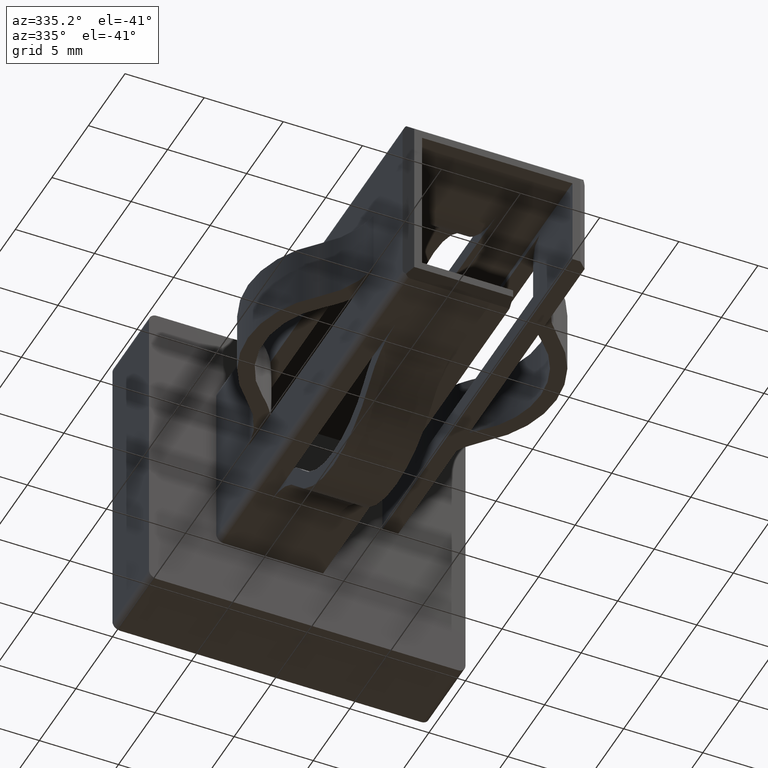
[diagram: clean part render]
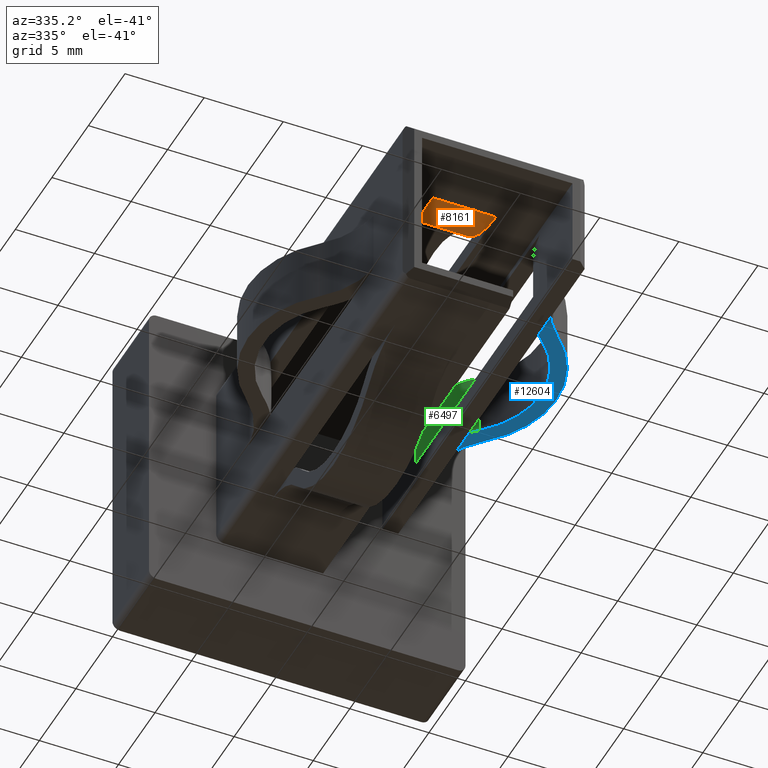
[diagram: same view with three faces highlighted in distinct colors, each labeled with its STEP entity id]
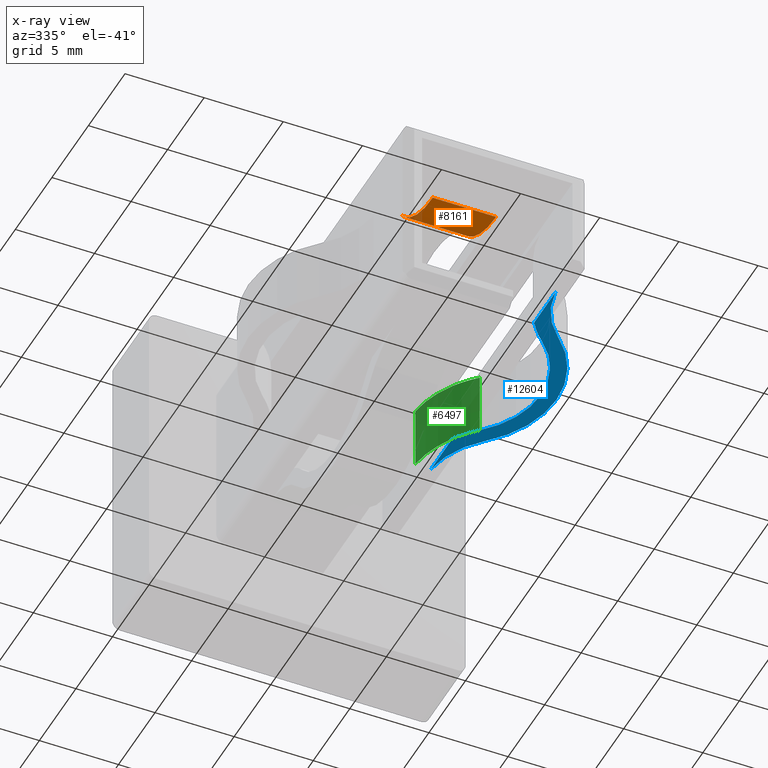
[diagram: x-ray of the same camera — body ghosted, the three highlighted faces saturated]
A machine part, auxiliary view with three faces highlighted in distinct colors.
The next image is the same camera in x-ray (body ghosted, the three faces saturated) — at least one of them is partly hidden behind the body in this view.
Their STEP definitions:

[orange] entity #8161 — the highlighted cylindrical surface (partial cylindrical patch) has radius 5.5423 mm, axis along (1, -0, -0).
#254 = EDGE_CURVE ( 'NONE', #2799, #10098, #3584, .T. ) ;
#347 = AXIS2_PLACEMENT_3D ( 'NONE', #12195, #11063, #12140 ) ;
#589 = CARTESIAN_POINT ( 'NONE',  ( -1.999999999999999100, -21.50000000000000000, 4.749999999999996400 ) ) ;
#842 = DIRECTION ( 'NONE',  ( -1.000000000000000000, -0.0000000000000000000, 1.927470528863118800E-016 ) ) ;
#1039 = VERTEX_POINT ( 'NONE', #2925 ) ;
#1273 = DIRECTION ( 'NONE',  ( -1.564990960916182700E-016, 0.0000000000000000000, -1.000000000000000000 ) ) ;
#1335 = CIRCLE ( 'NONE', #6800, 5.542279538027680800 ) ;
#1551 = CARTESIAN_POINT ( 'NONE',  ( -1.999999999999999100, -21.50000000000000000, 4.749999999999996400 ) ) ;
#1723 = CARTESIAN_POINT ( 'NONE',  ( 2.000000000000001300, -17.22946183789119700, 6.759665071773744300 ) ) ;
#2064 = VERTEX_POINT ( 'NONE', #1551 ) ;
#2303 = AXIS2_PLACEMENT_3D ( 'NONE', #11037, #8836, #7823 ) ;
#2564 = DIRECTION ( 'NONE',  ( -1.000000000000000000, -3.697785493223492800E-032, 1.927470528863119000E-016 ) ) ;
#2764 = AXIS2_PLACEMENT_3D ( 'NONE', #7645, #8650, #1273 ) ;
#2799 = VERTEX_POINT ( 'NONE', #13659 ) ;
#2925 = CARTESIAN_POINT ( 'NONE',  ( 2.000000000000000900, -21.50000000000000000, 4.749999999999995600 ) ) ;
#3584 = CIRCLE ( 'NONE', #2303, 5.542279538027680800 ) ;
#3647 = VECTOR ( 'NONE', #8036, 1000.000000000000000 ) ;
#3657 = CARTESIAN_POINT ( 'NONE',  ( -1.999999999999998700, -18.32438067502630500, 5.749999999999998200 ) ) ;
#3850 = AXIS2_PLACEMENT_3D ( 'NONE', #6771, #2564, #7886 ) ;
#4949 = EDGE_CURVE ( 'NONE', #11044, #2064, #13660, .T. ) ;
#5066 = ORIENTED_EDGE ( 'NONE', *, *, #7344, .F. ) ;
#5660 = CARTESIAN_POINT ( 'NONE',  ( 2.000000000000001300, -18.32438067502630500, 5.749999999999998200 ) ) ;
#5707 = ORIENTED_EDGE ( 'NONE', *, *, #9336, .F. ) ;
#5747 = CARTESIAN_POINT ( 'NONE',  ( -1.999999999999998700, -17.22946183789119700, 6.759665071773745200 ) ) ;
#6295 = ORIENTED_EDGE ( 'NONE', *, *, #12082, .F. ) ;
#6407 = LINE ( 'NONE', #1723, #10303 ) ;
#6771 = CARTESIAN_POINT ( 'NONE',  ( 2.000000000000002200, -21.50000015412883400, 10.29227953802767300 ) ) ;
#6800 = AXIS2_PLACEMENT_3D ( 'NONE', #12759, #7331, #7379 ) ;
#7331 = DIRECTION ( 'NONE',  ( -1.000000000000000000, -3.697785493223492800E-032, 1.927470528863119000E-016 ) ) ;
#7344 = EDGE_CURVE ( 'NONE', #2064, #1039, #10052, .T. ) ;
#7379 = DIRECTION ( 'NONE',  ( -1.564990960916182500E-016, 5.633967459298256100E-015, -1.000000000000000000 ) ) ;
#7645 = CARTESIAN_POINT ( 'NONE',  ( -1.999999999999997800, -21.50000015412883400, 10.29227953802767300 ) ) ;
#7823 = DIRECTION ( 'NONE',  ( -1.564990960916182500E-016, 2.503985537465891900E-015, -1.000000000000000000 ) ) ;
#7886 = DIRECTION ( 'NONE',  ( -1.564990960916182700E-016, -6.259963843664730800E-016, -1.000000000000000000 ) ) ;
#8036 = DIRECTION ( 'NONE',  ( 1.000000000000000000, -0.0000000000000000000, -1.927470528863118800E-016 ) ) ;
#8161 = ADVANCED_FACE ( 'NONE', ( #13776 ), #8834, .T. ) ;
#8650 = DIRECTION ( 'NONE',  ( 1.000000000000000000, -0.0000000000000000000, -1.927470528863118800E-016 ) ) ;
#8834 = CYLINDRICAL_SURFACE ( 'NONE', #2764, 5.542279538027679900 ) ;
#8836 = DIRECTION ( 'NONE',  ( -1.000000000000000000, -3.697785493223492800E-032, 1.927470528863119000E-016 ) ) ;
#8847 = CIRCLE ( 'NONE', #3850, 5.542279538027679900 ) ;
#9336 = EDGE_CURVE ( 'NONE', #13274, #11044, #1335, .T. ) ;
#9762 = EDGE_CURVE ( 'NONE', #10098, #1039, #8847, .T. ) ;
#10052 = LINE ( 'NONE', #589, #3647 ) ;
#10098 = VERTEX_POINT ( 'NONE', #5660 ) ;
#10303 = VECTOR ( 'NONE', #842, 1000.000000000000000 ) ;
#10793 = EDGE_LOOP ( 'NONE', ( #12399, #5066, #13184, #5707, #6295, #10859 ) ) ;
#10859 = ORIENTED_EDGE ( 'NONE', *, *, #254, .T. ) ;
#11037 = CARTESIAN_POINT ( 'NONE',  ( 2.000000000000002200, -21.50000015412883400, 10.29227953802767300 ) ) ;
#11044 = VERTEX_POINT ( 'NONE', #3657 ) ;
#11063 = DIRECTION ( 'NONE',  ( -1.000000000000000000, -3.697785493223492800E-032, 1.927470528863119000E-016 ) ) ;
#12082 = EDGE_CURVE ( 'NONE', #2799, #13274, #6407, .T. ) ;
#12140 = DIRECTION ( 'NONE',  ( -1.564990960916182700E-016, -6.259963843664730800E-016, -1.000000000000000000 ) ) ;
#12195 = CARTESIAN_POINT ( 'NONE',  ( -1.999999999999997800, -21.50000015412883400, 10.29227953802767300 ) ) ;
#12399 = ORIENTED_EDGE ( 'NONE', *, *, #9762, .T. ) ;
#12759 = CARTESIAN_POINT ( 'NONE',  ( -1.999999999999997800, -21.50000015412883400, 10.29227953802767300 ) ) ;
#13184 = ORIENTED_EDGE ( 'NONE', *, *, #4949, .F. ) ;
#13274 = VERTEX_POINT ( 'NONE', #5747 ) ;
#13659 = CARTESIAN_POINT ( 'NONE',  ( 2.000000000000001300, -17.22946183789119700, 6.759665071773744300 ) ) ;
#13660 = CIRCLE ( 'NONE', #347, 5.542279538027679900 ) ;
#13776 = FACE_OUTER_BOUND ( 'NONE', #10793, .T. ) ;

[blue] entity #12604 — the highlighted planar face has unit normal (0, 0, -1).
#163 = CARTESIAN_POINT ( 'NONE',  ( 0.0000000000000000000, 0.0000000000000000000, 0.3750000000000012200 ) ) ;
#198 = ORIENTED_EDGE ( 'NONE', *, *, #4746, .F. ) ;
#475 = AXIS2_PLACEMENT_3D ( 'NONE', #163, #5286, #9774 ) ;
#591 = CIRCLE ( 'NONE', #751, 6.570636481488699100 ) ;
#686 = CARTESIAN_POINT ( 'NONE',  ( 6.869671997424529900, -17.26419206682738100, 0.3750000000000012200 ) ) ;
#751 = AXIS2_PLACEMENT_3D ( 'NONE', #11535, #5091, #11581 ) ;
#797 = CARTESIAN_POINT ( 'NONE',  ( 7.538946040031041700, -7.999999999999117200, 0.3750000000000012200 ) ) ;
#817 = DIRECTION ( 'NONE',  ( -1.000000000000000000, 0.0000000000000000000, 0.0000000000000000000 ) ) ;
#967 = DIRECTION ( 'NONE',  ( -1.000000000000000000, 1.805660915888430200E-015, 0.0000000000000000000 ) ) ;
#1646 = VERTEX_POINT ( 'NONE', #686 ) ;
#1729 = FACE_OUTER_BOUND ( 'NONE', #13146, .T. ) ;
#1795 = CIRCLE ( 'NONE', #3226, 6.758939436817367000 ) ;
#2125 = CARTESIAN_POINT ( 'NONE',  ( 5.749999999999998200, -21.49999999995739200, 0.3750000000000012200 ) ) ;
#2254 = PLANE ( 'NONE',  #475 ) ;
#2282 = EDGE_CURVE ( 'NONE', #1646, #13076, #10134, .T. ) ;
#2753 = DIRECTION ( 'NONE',  ( -0.0000000000000000000, -0.0000000000000000000, 1.000000000000000000 ) ) ;
#2902 = DIRECTION ( 'NONE',  ( -0.0000000000000000000, -0.0000000000000000000, 1.000000000000000000 ) ) ;
#2929 = VERTEX_POINT ( 'NONE', #10435 ) ;
#3226 = AXIS2_PLACEMENT_3D ( 'NONE', #9341, #2902, #10440 ) ;
#3247 = VERTEX_POINT ( 'NONE', #5788 ) ;
#3318 = AXIS2_PLACEMENT_3D ( 'NONE', #4860, #11441, #12451 ) ;
#3486 = AXIS2_PLACEMENT_3D ( 'NONE', #3837, #5941, #8088 ) ;
#3552 = EDGE_CURVE ( 'NONE', #12341, #3247, #12499, .T. ) ;
#3599 = CARTESIAN_POINT ( 'NONE',  ( 5.750000000000000000, -4.500000000032007300, 0.3750000000000012200 ) ) ;
#3837 = CARTESIAN_POINT ( 'NONE',  ( 11.29085412328628700, -22.12489287862712600, 0.3750000000000012200 ) ) ;
#3896 = CARTESIAN_POINT ( 'NONE',  ( 5.749999999999998200, -26.00000000000000000, 0.3750000000000012200 ) ) ;
#3933 = ORIENTED_EDGE ( 'NONE', *, *, #11114, .F. ) ;
#4234 = DIRECTION ( 'NONE',  ( -0.0000000000000000000, -0.0000000000000000000, 1.000000000000000000 ) ) ;
#4314 = ORIENTED_EDGE ( 'NONE', *, *, #10712, .F. ) ;
#4540 = CIRCLE ( 'NONE', #9185, 5.575980229998810600 ) ;
#4746 = EDGE_CURVE ( 'NONE', #5052, #5506, #6531, .T. ) ;
#4860 = CARTESIAN_POINT ( 'NONE',  ( 11.29085412328628700, -22.12489287862712600, 0.3750000000000012200 ) ) ;
#5052 = VERTEX_POINT ( 'NONE', #3599 ) ;
#5091 = DIRECTION ( 'NONE',  ( -0.0000000000000000000, -0.0000000000000000000, 1.000000000000000000 ) ) ;
#5102 = DIRECTION ( 'NONE',  ( 0.0000000000000000000, -1.000000000000000000, 0.0000000000000000000 ) ) ;
#5185 = VECTOR ( 'NONE', #10782, 1000.000000000000000 ) ;
#5242 = ORIENTED_EDGE ( 'NONE', *, *, #13494, .T. ) ;
#5247 = CARTESIAN_POINT ( 'NONE',  ( 5.749999999999998200, -26.00000000000000000, 0.3750000000000012200 ) ) ;
#5280 = ORIENTED_EDGE ( 'NONE', *, *, #10790, .F. ) ;
#5286 = DIRECTION ( 'NONE',  ( 0.0000000000000000000, 0.0000000000000000000, -1.000000000000000000 ) ) ;
#5472 = DIRECTION ( 'NONE',  ( -1.000000000000000000, 0.0000000000000000000, 0.0000000000000000000 ) ) ;
#5506 = VERTEX_POINT ( 'NONE', #6465 ) ;
#5614 = VERTEX_POINT ( 'NONE', #2125 ) ;
#5788 = CARTESIAN_POINT ( 'NONE',  ( 6.869671997424537900, -8.735807933172621300, 0.3750000000000012200 ) ) ;
#5941 = DIRECTION ( 'NONE',  ( -0.0000000000000000000, -0.0000000000000000000, 1.000000000000000000 ) ) ;
#6465 = CARTESIAN_POINT ( 'NONE',  ( 5.749999999999998200, -7.406707234116596300, 0.3750000000000012200 ) ) ;
#6531 = LINE ( 'NONE', #5247, #5185 ) ;
#7145 = CARTESIAN_POINT ( 'NONE',  ( 11.29085412328629100, -3.875107121372872500, 0.3750000000000012200 ) ) ;
#8001 = CARTESIAN_POINT ( 'NONE',  ( 8.755343748506501100, -12.99999999999999800, 0.3750000000000012200 ) ) ;
#8088 = DIRECTION ( 'NONE',  ( -1.000000000000000000, 1.003243632071750600E-014, 0.0000000000000000000 ) ) ;
#8560 = CARTESIAN_POINT ( 'NONE',  ( 2.991060563177831100, -12.99999999999999800, 0.3750000000000012200 ) ) ;
#8669 = EDGE_CURVE ( 'NONE', #10388, #9664, #1795, .T. ) ;
#9185 = AXIS2_PLACEMENT_3D ( 'NONE', #7145, #2753, #817 ) ;
#9341 = CARTESIAN_POINT ( 'NONE',  ( 2.991060563177831100, -12.99999999999999800, 0.3750000000000012200 ) ) ;
#9473 = ORIENTED_EDGE ( 'NONE', *, *, #2282, .F. ) ;
#9561 = ORIENTED_EDGE ( 'NONE', *, *, #3552, .T. ) ;
#9664 = VERTEX_POINT ( 'NONE', #797 ) ;
#9774 = DIRECTION ( 'NONE',  ( -1.000000000000000000, 0.0000000000000000000, -0.0000000000000000000 ) ) ;
#10006 = CIRCLE ( 'NONE', #13086, 6.758939436817367000 ) ;
#10134 = CIRCLE ( 'NONE', #3486, 6.570636481488695500 ) ;
#10386 = CARTESIAN_POINT ( 'NONE',  ( 9.749999999995198500, -12.99999999999999800, 0.3750000000000012200 ) ) ;
#10388 = VERTEX_POINT ( 'NONE', #10386 ) ;
#10435 = CARTESIAN_POINT ( 'NONE',  ( 7.538946040030235300, -18.00000000000000400, 0.3750000000000012200 ) ) ;
#10440 = DIRECTION ( 'NONE',  ( -1.000000000000000000, 0.0000000000000000000, 0.0000000000000000000 ) ) ;
#10712 = EDGE_CURVE ( 'NONE', #13076, #5614, #13916, .T. ) ;
#10731 = ORIENTED_EDGE ( 'NONE', *, *, #12407, .T. ) ;
#10782 = DIRECTION ( 'NONE',  ( 0.0000000000000000000, -1.000000000000000000, 0.0000000000000000000 ) ) ;
#10790 = EDGE_CURVE ( 'NONE', #2929, #10388, #10006, .T. ) ;
#10881 = DIRECTION ( 'NONE',  ( -0.0000000000000000000, -0.0000000000000000000, 1.000000000000000000 ) ) ;
#11091 = CARTESIAN_POINT ( 'NONE',  ( 5.749999999999998200, -18.59329276588339800, 0.3750000000000012200 ) ) ;
#11114 = EDGE_CURVE ( 'NONE', #5506, #3247, #591, .T. ) ;
#11441 = DIRECTION ( 'NONE',  ( -0.0000000000000000000, -0.0000000000000000000, 1.000000000000000000 ) ) ;
#11459 = AXIS2_PLACEMENT_3D ( 'NONE', #8560, #4234, #967 ) ;
#11478 = CIRCLE ( 'NONE', #11459, 5.764283185328669600 ) ;
#11535 = CARTESIAN_POINT ( 'NONE',  ( 11.29085412328629100, -3.875107121372872500, 0.3750000000000012200 ) ) ;
#11537 = VECTOR ( 'NONE', #5102, 1000.000000000000000 ) ;
#11581 = DIRECTION ( 'NONE',  ( -1.000000000000000000, 0.0000000000000000000, 0.0000000000000000000 ) ) ;
#12341 = VERTEX_POINT ( 'NONE', #8001 ) ;
#12407 = EDGE_CURVE ( 'NONE', #2929, #5614, #13877, .T. ) ;
#12422 = DIRECTION ( 'NONE',  ( -1.000000000000000000, 0.0000000000000000000, 0.0000000000000000000 ) ) ;
#12451 = DIRECTION ( 'NONE',  ( -1.000000000000000000, 0.0000000000000000000, 0.0000000000000000000 ) ) ;
#12471 = DIRECTION ( 'NONE',  ( -0.0000000000000000000, -0.0000000000000000000, 1.000000000000000000 ) ) ;
#12499 = CIRCLE ( 'NONE', #12509, 5.764283185328669600 ) ;
#12509 = AXIS2_PLACEMENT_3D ( 'NONE', #13428, #12471, #12422 ) ;
#12604 = ADVANCED_FACE ( 'NONE', ( #1729 ), #2254, .T. ) ;
#12721 = ORIENTED_EDGE ( 'NONE', *, *, #8669, .F. ) ;
#12737 = CARTESIAN_POINT ( 'NONE',  ( 2.991060563177831100, -12.99999999999999800, 0.3750000000000012200 ) ) ;
#12813 = EDGE_CURVE ( 'NONE', #5052, #9664, #4540, .T. ) ;
#12911 = ORIENTED_EDGE ( 'NONE', *, *, #12813, .T. ) ;
#13076 = VERTEX_POINT ( 'NONE', #11091 ) ;
#13086 = AXIS2_PLACEMENT_3D ( 'NONE', #12737, #10881, #5472 ) ;
#13146 = EDGE_LOOP ( 'NONE', ( #198, #12911, #12721, #5280, #10731, #4314, #9473, #5242, #9561, #3933 ) ) ;
#13428 = CARTESIAN_POINT ( 'NONE',  ( 2.991060563177831100, -12.99999999999999800, 0.3750000000000012200 ) ) ;
#13494 = EDGE_CURVE ( 'NONE', #1646, #12341, #11478, .T. ) ;
#13877 = CIRCLE ( 'NONE', #3318, 5.575980229999999000 ) ;
#13916 = LINE ( 'NONE', #3896, #11537 ) ;

[green] entity #6497 — the highlighted cylindrical surface (partial cylindrical patch) has radius 6.5706 mm, axis along (-0, -0, -1).
#37 = EDGE_CURVE ( 'NONE', #8540, #5506, #957, .T. ) ;
#299 = VECTOR ( 'NONE', #12448, 1000.000000000000000 ) ;
#591 = CIRCLE ( 'NONE', #751, 6.570636481488699100 ) ;
#751 = AXIS2_PLACEMENT_3D ( 'NONE', #11535, #5091, #11581 ) ;
#879 = CARTESIAN_POINT ( 'NONE',  ( 6.869671997424537900, -8.735807933172621300, 4.375000000000000900 ) ) ;
#957 = CIRCLE ( 'NONE', #5165, 6.570636481488699100 ) ;
#1628 = CARTESIAN_POINT ( 'NONE',  ( 4.749999999999999100, -4.500000000000007100, 0.3750000000000012200 ) ) ;
#1755 = CARTESIAN_POINT ( 'NONE',  ( 6.869671997424537900, -8.735807933172621300, 0.3750000000000012200 ) ) ;
#3134 = LINE ( 'NONE', #1755, #299 ) ;
#3247 = VERTEX_POINT ( 'NONE', #5788 ) ;
#3257 = DIRECTION ( 'NONE',  ( -0.0000000000000000000, -0.0000000000000000000, 1.000000000000000000 ) ) ;
#4321 = VECTOR ( 'NONE', #9224, 1000.000000000000000 ) ;
#4422 = ORIENTED_EDGE ( 'NONE', *, *, #7988, .F. ) ;
#4885 = CARTESIAN_POINT ( 'NONE',  ( 11.29085412328629100, -3.875107121372872500, 0.3750000000000012200 ) ) ;
#4893 = DIRECTION ( 'NONE',  ( -0.0000000000000000000, -0.0000000000000000000, 1.000000000000000000 ) ) ;
#5082 = DIRECTION ( 'NONE',  ( -1.000000000000000000, 0.0000000000000000000, 0.0000000000000000000 ) ) ;
#5091 = DIRECTION ( 'NONE',  ( -0.0000000000000000000, -0.0000000000000000000, 1.000000000000000000 ) ) ;
#5165 = AXIS2_PLACEMENT_3D ( 'NONE', #4885, #12474, #7425 ) ;
#5287 = DIRECTION ( 'NONE',  ( -0.0000000000000000000, -0.0000000000000000000, -1.000000000000000000 ) ) ;
#5506 = VERTEX_POINT ( 'NONE', #6465 ) ;
#5788 = CARTESIAN_POINT ( 'NONE',  ( 6.869671997424537900, -8.735807933172621300, 0.3750000000000012200 ) ) ;
#6465 = CARTESIAN_POINT ( 'NONE',  ( 5.749999999999998200, -7.406707234116596300, 0.3750000000000012200 ) ) ;
#6497 = ADVANCED_FACE ( 'NONE', ( #8000 ), #6661, .T. ) ;
#6661 = CYLINDRICAL_SURFACE ( 'NONE', #12251, 6.570636481488699100 ) ;
#6684 = EDGE_CURVE ( 'NONE', #7545, #8540, #7173, .T. ) ;
#6857 = VERTEX_POINT ( 'NONE', #10934 ) ;
#6962 = AXIS2_PLACEMENT_3D ( 'NONE', #7428, #3257, #13838 ) ;
#7173 = LINE ( 'NONE', #12319, #4321 ) ;
#7425 = DIRECTION ( 'NONE',  ( -1.000000000000000000, 0.0000000000000000000, 0.0000000000000000000 ) ) ;
#7428 = CARTESIAN_POINT ( 'NONE',  ( 11.29085412328629100, -3.875107121372872500, 4.375000000000000900 ) ) ;
#7493 = CIRCLE ( 'NONE', #6962, 6.570636481488699100 ) ;
#7545 = VERTEX_POINT ( 'NONE', #9041 ) ;
#7618 = ORIENTED_EDGE ( 'NONE', *, *, #11114, .T. ) ;
#7639 = ORIENTED_EDGE ( 'NONE', *, *, #12766, .F. ) ;
#7988 = EDGE_CURVE ( 'NONE', #7545, #6857, #7493, .T. ) ;
#8000 = FACE_OUTER_BOUND ( 'NONE', #13315, .T. ) ;
#8490 = ORIENTED_EDGE ( 'NONE', *, *, #8632, .T. ) ;
#8540 = VERTEX_POINT ( 'NONE', #1628 ) ;
#8632 = EDGE_CURVE ( 'NONE', #3247, #8728, #3134, .T. ) ;
#8728 = VERTEX_POINT ( 'NONE', #879 ) ;
#9041 = CARTESIAN_POINT ( 'NONE',  ( 4.749999999999997300, -4.500000000000003600, 4.375000000000000900 ) ) ;
#9105 = CIRCLE ( 'NONE', #11993, 6.570636481488699100 ) ;
#9224 = DIRECTION ( 'NONE',  ( -0.0000000000000000000, -0.0000000000000000000, -1.000000000000000000 ) ) ;
#10284 = CARTESIAN_POINT ( 'NONE',  ( 11.29085412328629100, -3.875107121372872500, 4.375000000000000900 ) ) ;
#10374 = ORIENTED_EDGE ( 'NONE', *, *, #37, .T. ) ;
#10829 = CARTESIAN_POINT ( 'NONE',  ( 11.29085412328629100, -3.875107121372872500, 4.375000000000000900 ) ) ;
#10934 = CARTESIAN_POINT ( 'NONE',  ( 5.749999999999998200, -7.406707234116596300, 4.375000000000000900 ) ) ;
#11114 = EDGE_CURVE ( 'NONE', #5506, #3247, #591, .T. ) ;
#11355 = ORIENTED_EDGE ( 'NONE', *, *, #6684, .T. ) ;
#11535 = CARTESIAN_POINT ( 'NONE',  ( 11.29085412328629100, -3.875107121372872500, 0.3750000000000012200 ) ) ;
#11581 = DIRECTION ( 'NONE',  ( -1.000000000000000000, 0.0000000000000000000, 0.0000000000000000000 ) ) ;
#11907 = DIRECTION ( 'NONE',  ( -1.000000000000000000, 0.0000000000000000000, 0.0000000000000000000 ) ) ;
#11993 = AXIS2_PLACEMENT_3D ( 'NONE', #10284, #4893, #5082 ) ;
#12251 = AXIS2_PLACEMENT_3D ( 'NONE', #10829, #5287, #11907 ) ;
#12319 = CARTESIAN_POINT ( 'NONE',  ( 4.749999999999997300, -4.500000000000003600, 4.375000000000000900 ) ) ;
#12448 = DIRECTION ( 'NONE',  ( -0.0000000000000000000, -0.0000000000000000000, 1.000000000000000000 ) ) ;
#12474 = DIRECTION ( 'NONE',  ( -0.0000000000000000000, -0.0000000000000000000, 1.000000000000000000 ) ) ;
#12766 = EDGE_CURVE ( 'NONE', #6857, #8728, #9105, .T. ) ;
#13315 = EDGE_LOOP ( 'NONE', ( #4422, #11355, #10374, #7618, #8490, #7639 ) ) ;
#13838 = DIRECTION ( 'NONE',  ( -1.000000000000000000, 0.0000000000000000000, 0.0000000000000000000 ) ) ;